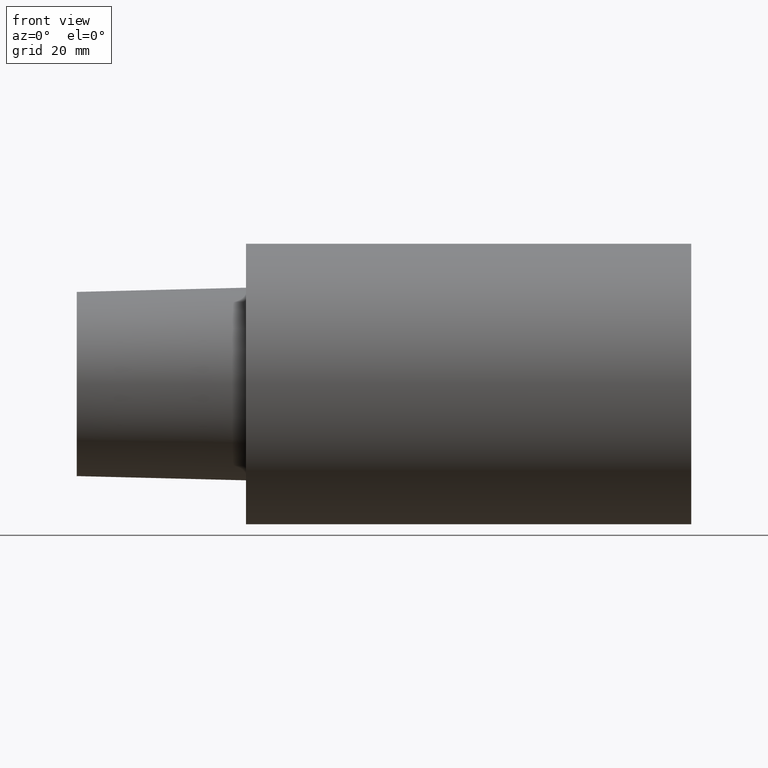
[diagram: clean part render]
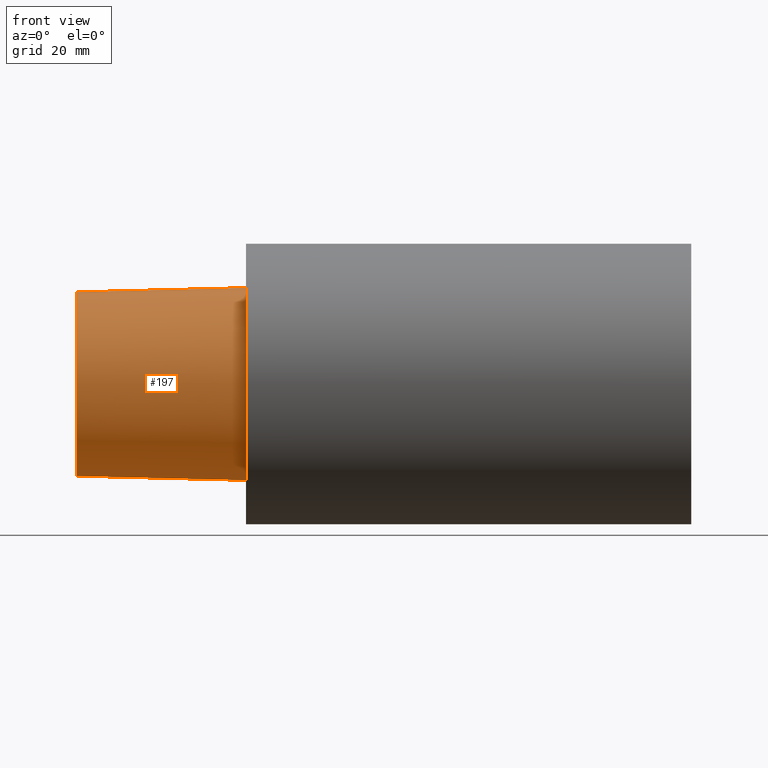
[diagram: same view with one face highlighted and labeled with its STEP entity id]
A machine part, front view. The second image highlights one B-rep face of the part: STEP entity #197.
In plain terms, the highlighted conical surface has half-angle 1.432 deg.
Its self-contained STEP definition (entity closure, byte-faithful):
#1 = ORIENTED_EDGE ( 'NONE', *, *, #124, .F. ) ;
#4 = CARTESIAN_POINT ( 'NONE',  ( -37.99999996124000035, 0.000000000000000000, 0.000000000000000000 ) ) ;
#5 = CARTESIAN_POINT ( 'NONE',  ( 0.000000000000000000, 0.000000000000000000, 0.000000000000000000 ) ) ;
#13 = ORIENTED_EDGE ( 'NONE', *, *, #248, .F. ) ;
#15 = ORIENTED_EDGE ( 'NONE', *, *, #222, .T. ) ;
#21 = DIRECTION ( 'NONE',  ( -1.000000000000000000, 0.000000000000000000, 0.000000000000000000 ) ) ;
#25 = AXIS2_PLACEMENT_3D ( 'NONE', #5, #69, #158 ) ;
#26 = CARTESIAN_POINT ( 'NONE',  ( 0.000000000000000000, 2.648985971153096932E-15, 21.63061196907898065 ) ) ;
#58 = VERTEX_POINT ( 'NONE', #216 ) ;
#60 = CARTESIAN_POINT ( 'NONE',  ( 0.000000000000000000, 0.000000000000000000, -21.63061196907898065 ) ) ;
#62 = CARTESIAN_POINT ( 'NONE',  ( 0.000000000000000000, 0.000000000000000000, 0.000000000000000000 ) ) ;
#63 = LINE ( 'NONE', #26, #72 ) ;
#69 = DIRECTION ( 'NONE',  ( 1.000000000000000000, 0.000000000000000000, 0.000000000000000000 ) ) ;
#72 = VECTOR ( 'NONE', #156, 1000.000000000000114 ) ;
#102 = CARTESIAN_POINT ( 'NONE',  ( 0.000000000000000000, 0.000000000000000000, -21.63061196907898065 ) ) ;
#106 = FACE_OUTER_BOUND ( 'NONE', #121, .T. ) ;
#110 = EDGE_CURVE ( 'NONE', #174, #112, #210, .T. ) ;
#112 = VERTEX_POINT ( 'NONE', #145 ) ;
#113 = VERTEX_POINT ( 'NONE', #180 ) ;
#121 = EDGE_LOOP ( 'NONE', ( #13, #1, #15, #218 ) ) ;
#124 = EDGE_CURVE ( 'NONE', #113, #58, #221, .T. ) ;
#126 = DIRECTION ( 'NONE',  ( 0.000000000000000000, 0.000000000000000000, 1.000000000000000000 ) ) ;
#131 = AXIS2_PLACEMENT_3D ( 'NONE', #4, #21, #126 ) ;
#135 = CONICAL_SURFACE ( 'NONE', #25, 21.63061196907898065, 0.02499698951949481940 ) ;
#145 = CARTESIAN_POINT ( 'NONE',  ( 0.000000000000000000, 2.648985971153096932E-15, 21.63061196907898065 ) ) ;
#156 = DIRECTION ( 'NONE',  ( 0.9996875915253454759, 3.060929527057623083E-18, 0.02499438637482059161 ) ) ;
#157 = DIRECTION ( 'NONE',  ( -1.000000000000000000, 0.000000000000000000, 0.000000000000000000 ) ) ;
#158 = DIRECTION ( 'NONE',  ( 0.000000000000000000, 0.000000000000000000, -1.000000000000000000 ) ) ;
#174 = VERTEX_POINT ( 'NONE', #60 ) ;
#178 = DIRECTION ( 'NONE',  ( 0.9996875915253454759, 0.000000000000000000, -0.02499438637482059161 ) ) ;
#180 = CARTESIAN_POINT ( 'NONE',  ( -37.99999996124000035, 0.000000000000000000, -20.68052847366897140 ) ) ;
#197 = ADVANCED_FACE ( 'NONE', ( #106 ), #135, .T. ) ;
#200 = DIRECTION ( 'NONE',  ( 0.000000000000000000, 0.000000000000000000, 1.000000000000000000 ) ) ;
#210 = CIRCLE ( 'NONE', #249, 21.63061196907898065 ) ;
#216 = CARTESIAN_POINT ( 'NONE',  ( -37.99999996124000035, 2.590810135574270981E-15, 20.68052847366897140 ) ) ;
#218 = ORIENTED_EDGE ( 'NONE', *, *, #110, .T. ) ;
#221 = CIRCLE ( 'NONE', #131, 20.68052847366897140 ) ;
#222 = EDGE_CURVE ( 'NONE', #113, #174, #225, .T. ) ;
#225 = LINE ( 'NONE', #102, #232 ) ;
#232 = VECTOR ( 'NONE', #178, 1000.000000000000114 ) ;
#248 = EDGE_CURVE ( 'NONE', #58, #112, #63, .T. ) ;
#249 = AXIS2_PLACEMENT_3D ( 'NONE', #62, #157, #200 ) ;